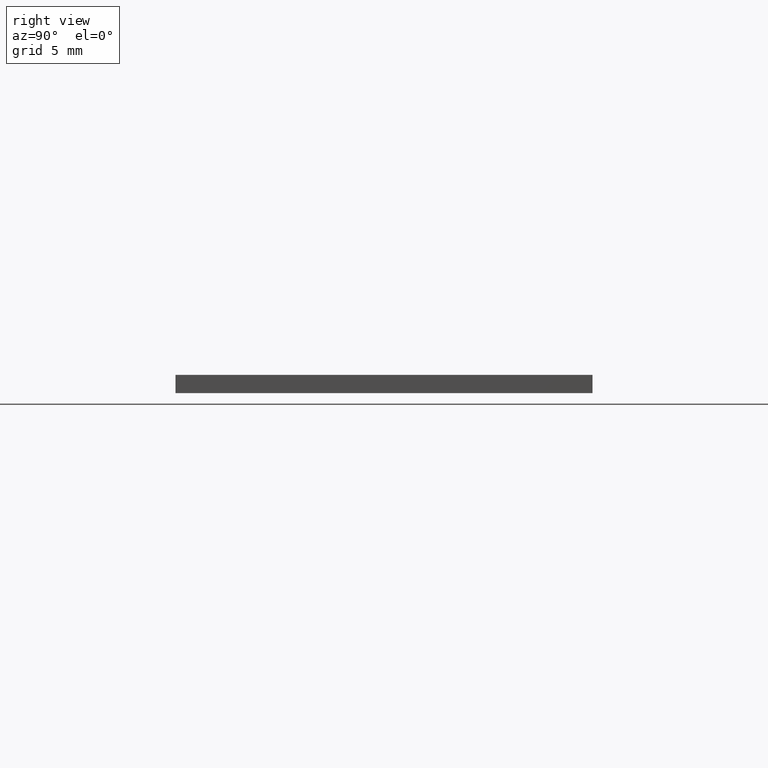
[diagram: clean part render]
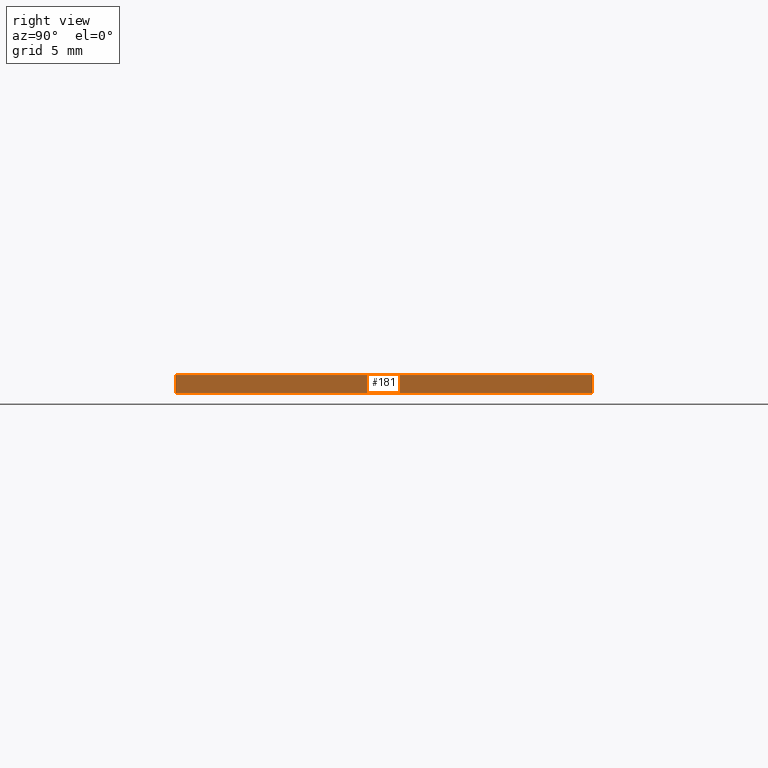
[diagram: same view with one face highlighted and labeled with its STEP entity id]
A machine part, right view. The second image highlights one B-rep face of the part: STEP entity #181.
In plain terms, the highlighted planar face has unit normal (-1, 0, 0).
Its self-contained STEP definition (entity closure, byte-faithful):
#3 = ORIENTED_EDGE ( 'NONE', *, *, #121, .F. ) ;
#8 = ORIENTED_EDGE ( 'NONE', *, *, #85, .F. ) ;
#14 = ORIENTED_EDGE ( 'NONE', *, *, #97, .T. ) ;
#15 = LINE ( 'NONE', #192, #52 ) ;
#26 = CARTESIAN_POINT ( 'NONE',  ( 36.00000000000000000, 25.00000000000000000, 0.000000000000000000 ) ) ;
#28 = EDGE_CURVE ( 'NONE', #37, #129, #80, .T. ) ;
#30 = PLANE ( 'NONE',  #146 ) ;
#34 = DIRECTION ( 'NONE',  ( 0.000000000000000000, 1.000000000000000000, 0.000000000000000000 ) ) ;
#35 = CARTESIAN_POINT ( 'NONE',  ( 36.00000000000000000, 25.00000000000000000, 1.100000000000000089 ) ) ;
#37 = VERTEX_POINT ( 'NONE', #69 ) ;
#40 = CARTESIAN_POINT ( 'NONE',  ( 36.00000000000000000, 0.000000000000000000, 0.000000000000000000 ) ) ;
#52 = VECTOR ( 'NONE', #34, 1000.000000000000000 ) ;
#63 = VECTOR ( 'NONE', #151, 1000.000000000000000 ) ;
#67 = LINE ( 'NONE', #126, #75 ) ;
#69 = CARTESIAN_POINT ( 'NONE',  ( 36.00000000000000000, 0.000000000000000000, 0.000000000000000000 ) ) ;
#75 = VECTOR ( 'NONE', #193, 1000.000000000000000 ) ;
#80 = LINE ( 'NONE', #40, #63 ) ;
#84 = ORIENTED_EDGE ( 'NONE', *, *, #28, .T. ) ;
#85 = EDGE_CURVE ( 'NONE', #182, #128, #15, .T. ) ;
#89 = CARTESIAN_POINT ( 'NONE',  ( 36.00000000000000000, 0.000000000000000000, 1.100000000000000089 ) ) ;
#96 = DIRECTION ( 'NONE',  ( -0.000000000000000000, -0.000000000000000000, -1.000000000000000000 ) ) ;
#97 = EDGE_CURVE ( 'NONE', #182, #37, #67, .T. ) ;
#101 = VECTOR ( 'NONE', #96, 1000.000000000000000 ) ;
#106 = FACE_OUTER_BOUND ( 'NONE', #166, .T. ) ;
#121 = EDGE_CURVE ( 'NONE', #128, #129, #164, .T. ) ;
#126 = CARTESIAN_POINT ( 'NONE',  ( 36.00000000000000000, 0.000000000000000000, 1.100000000000000089 ) ) ;
#128 = VERTEX_POINT ( 'NONE', #169 ) ;
#129 = VERTEX_POINT ( 'NONE', #26 ) ;
#133 = DIRECTION ( 'NONE',  ( 0.000000000000000000, 0.000000000000000000, 1.000000000000000000 ) ) ;
#135 = CARTESIAN_POINT ( 'NONE',  ( 36.00000000000000000, 0.000000000000000000, 1.100000000000000089 ) ) ;
#146 = AXIS2_PLACEMENT_3D ( 'NONE', #89, #187, #133 ) ;
#151 = DIRECTION ( 'NONE',  ( 0.000000000000000000, 1.000000000000000000, 0.000000000000000000 ) ) ;
#164 = LINE ( 'NONE', #35, #101 ) ;
#166 = EDGE_LOOP ( 'NONE', ( #84, #3, #8, #14 ) ) ;
#169 = CARTESIAN_POINT ( 'NONE',  ( 36.00000000000000000, 25.00000000000000000, 1.100000000000000089 ) ) ;
#181 = ADVANCED_FACE ( 'NONE', ( #106 ), #30, .F. ) ;
#182 = VERTEX_POINT ( 'NONE', #135 ) ;
#187 = DIRECTION ( 'NONE',  ( -1.000000000000000000, 0.000000000000000000, 0.000000000000000000 ) ) ;
#192 = CARTESIAN_POINT ( 'NONE',  ( 36.00000000000000000, 0.000000000000000000, 1.100000000000000089 ) ) ;
#193 = DIRECTION ( 'NONE',  ( -0.000000000000000000, -0.000000000000000000, -1.000000000000000000 ) ) ;